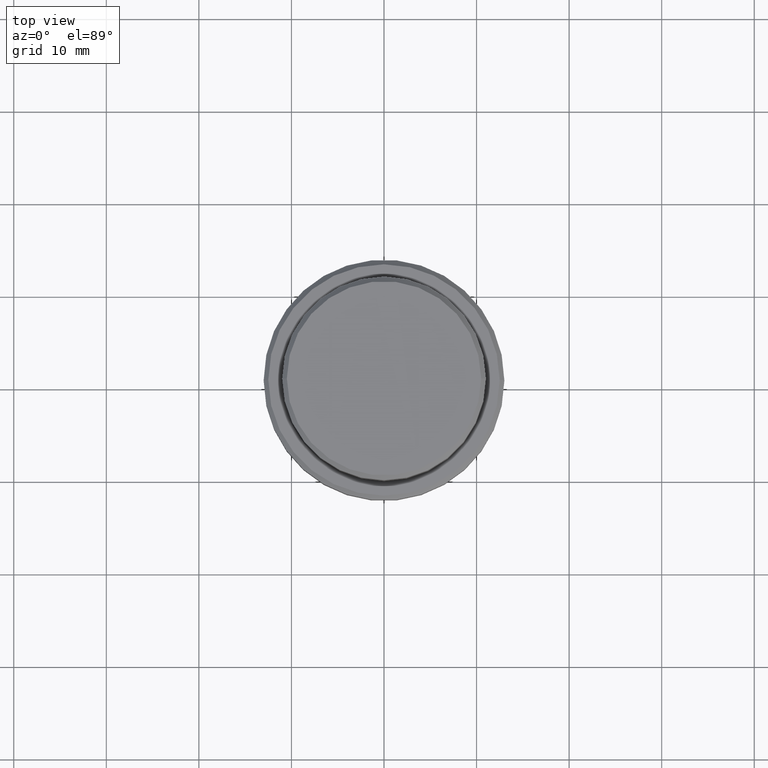
[diagram: clean part render]
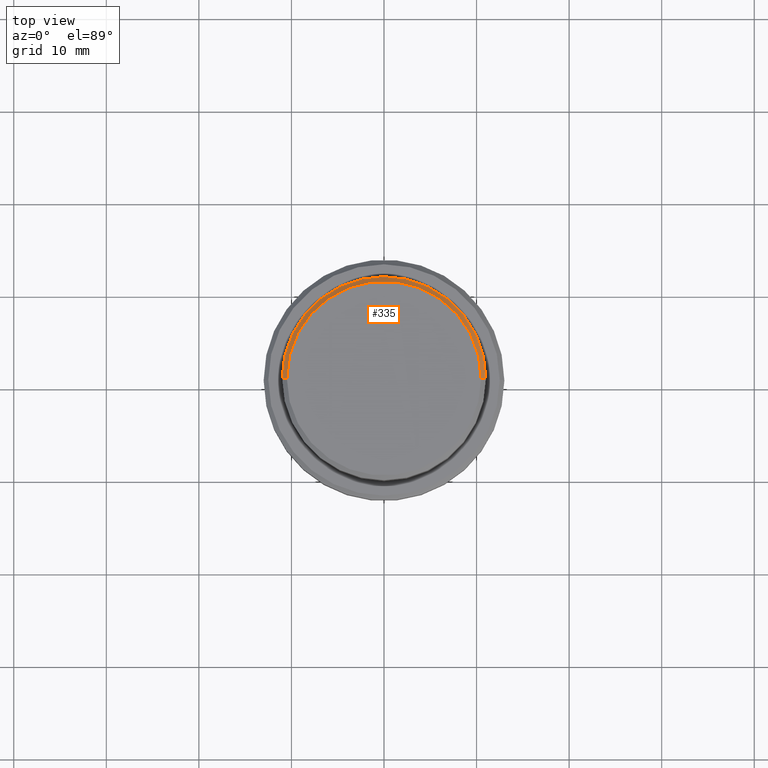
[diagram: same view with one face highlighted and labeled with its STEP entity id]
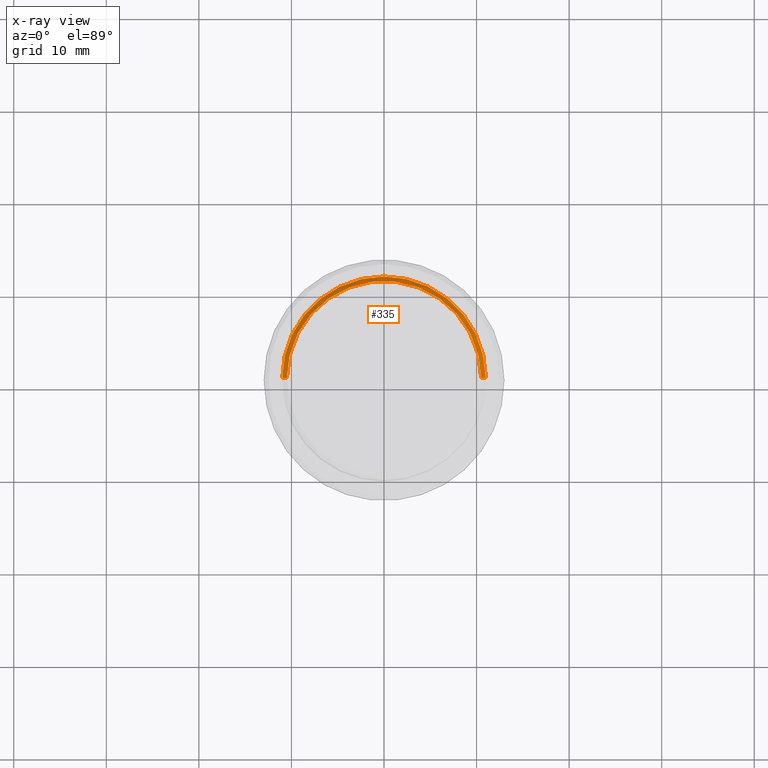
[diagram: x-ray of the same camera — body ghosted, the highlighted face saturated]
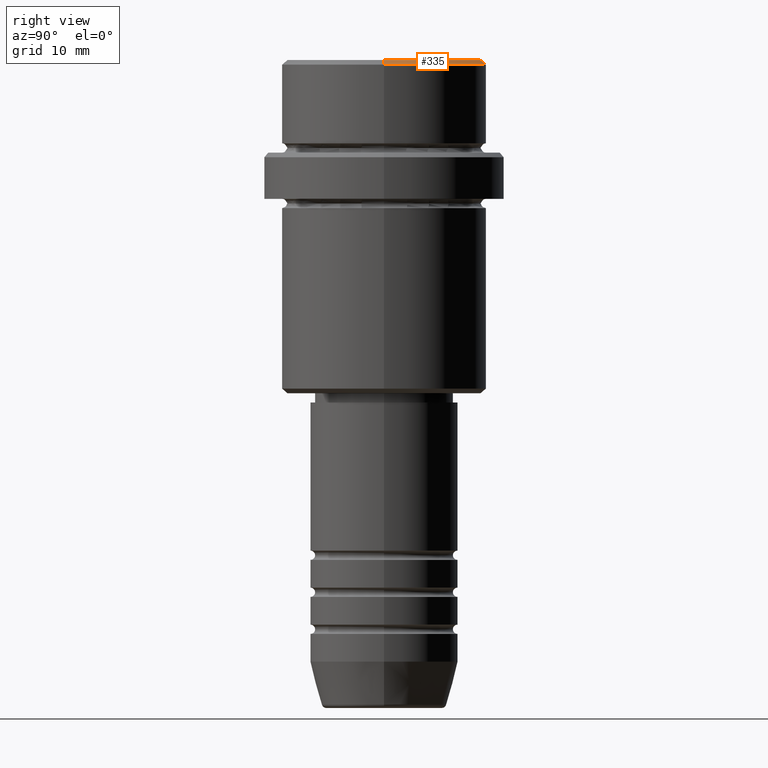
[diagram: same view with one face highlighted and labeled with its STEP entity id]
A machine part, top view. The second image highlights one B-rep face of the part: STEP entity #335.
The next image is the same camera in x-ray: the body ghosted, the highlighted face saturated — about 0% of this face is hidden behind the body in this view.
A second angle (right view) of the same face is appended — the face is thin or edge-on in the first view.
In plain terms, the highlighted conical surface has half-angle 45 deg.
Its self-contained STEP definition (entity closure, byte-faithful):
#68 = FACE_OUTER_BOUND ( 'NONE', #1405, .T. ) ;
#78 = CARTESIAN_POINT ( 'NONE',  ( 10.99999999999998757, 0.000000000000000000, -0.4999999999999813483 ) ) ;
#175 = DIRECTION ( 'NONE',  ( -0.000000000000000000, -0.000000000000000000, 1.000000000000000000 ) ) ;
#211 = AXIS2_PLACEMENT_3D ( 'NONE', #912, #370, #811 ) ;
#268 = CARTESIAN_POINT ( 'NONE',  ( 0.000000000000000000, 0.000000000000000000, 0.000000000000000000 ) ) ;
#300 = AXIS2_PLACEMENT_3D ( 'NONE', #268, #175, #492 ) ;
#312 = CARTESIAN_POINT ( 'NONE',  ( -10.50000000000000178, 0.000000000000000000, 0.000000000000000000 ) ) ;
#335 = ADVANCED_FACE ( 'NONE', ( #68 ), #761, .T. ) ;
#370 = DIRECTION ( 'NONE',  ( 0.000000000000000000, 0.000000000000000000, -1.000000000000000000 ) ) ;
#492 = DIRECTION ( 'NONE',  ( 1.000000000000000000, 0.000000000000000000, 0.000000000000000000 ) ) ;
#513 = ORIENTED_EDGE ( 'NONE', *, *, #628, .F. ) ;
#515 = DIRECTION ( 'NONE',  ( -1.000000000000000000, 0.000000000000000000, 0.000000000000000000 ) ) ;
#575 = ORIENTED_EDGE ( 'NONE', *, *, #707, .F. ) ;
#584 = VECTOR ( 'NONE', #671, 1000.000000000000114 ) ;
#618 = DIRECTION ( 'NONE',  ( 0.000000000000000000, 0.000000000000000000, -1.000000000000000000 ) ) ;
#628 = EDGE_CURVE ( 'NONE', #773, #1221, #895, .T. ) ;
#635 = ORIENTED_EDGE ( 'NONE', *, *, #839, .T. ) ;
#644 = LINE ( 'NONE', #861, #1078 ) ;
#671 = DIRECTION ( 'NONE',  ( -0.7071067811865500152, 0.000000000000000000, -0.7071067811865451302 ) ) ;
#707 = EDGE_CURVE ( 'NONE', #970, #1171, #1330, .T. ) ;
#715 = CARTESIAN_POINT ( 'NONE',  ( -10.99999999999998757, 1.347111479062086827E-15, -0.4999999999999813483 ) ) ;
#721 = CARTESIAN_POINT ( 'NONE',  ( 0.000000000000000000, 0.000000000000000000, 0.000000000000000000 ) ) ;
#761 = CONICAL_SURFACE ( 'NONE', #1392, 10.50000000000000178, 0.7853981633974517207 ) ;
#773 = VERTEX_POINT ( 'NONE', #715 ) ;
#786 = CARTESIAN_POINT ( 'NONE',  ( 10.50000000000000178, 1.316495309083404026E-15, 0.000000000000000000 ) ) ;
#811 = DIRECTION ( 'NONE',  ( 1.000000000000000000, 0.000000000000000000, 0.000000000000000000 ) ) ;
#839 = EDGE_CURVE ( 'NONE', #970, #1221, #644, .T. ) ;
#861 = CARTESIAN_POINT ( 'NONE',  ( 10.50000000000000178, 1.285879139104721028E-15, 0.000000000000000000 ) ) ;
#867 = DIRECTION ( 'NONE',  ( 0.7071067811865500152, 8.659560562354963673E-17, -0.7071067811865451302 ) ) ;
#895 = CIRCLE ( 'NONE', #211, 10.99999999999998757 ) ;
#898 = LINE ( 'NONE', #1203, #584 ) ;
#912 = CARTESIAN_POINT ( 'NONE',  ( 0.000000000000000000, 0.000000000000000000, -0.4999999999999813483 ) ) ;
#970 = VERTEX_POINT ( 'NONE', #786 ) ;
#972 = ORIENTED_EDGE ( 'NONE', *, *, #1342, .F. ) ;
#1078 = VECTOR ( 'NONE', #867, 1000.000000000000114 ) ;
#1171 = VERTEX_POINT ( 'NONE', #312 ) ;
#1203 = CARTESIAN_POINT ( 'NONE',  ( -10.50000000000000178, 0.000000000000000000, 0.000000000000000000 ) ) ;
#1221 = VERTEX_POINT ( 'NONE', #78 ) ;
#1330 = CIRCLE ( 'NONE', #300, 10.50000000000000178 ) ;
#1342 = EDGE_CURVE ( 'NONE', #1171, #773, #898, .T. ) ;
#1392 = AXIS2_PLACEMENT_3D ( 'NONE', #721, #618, #515 ) ;
#1405 = EDGE_LOOP ( 'NONE', ( #575, #635, #513, #972 ) ) ;